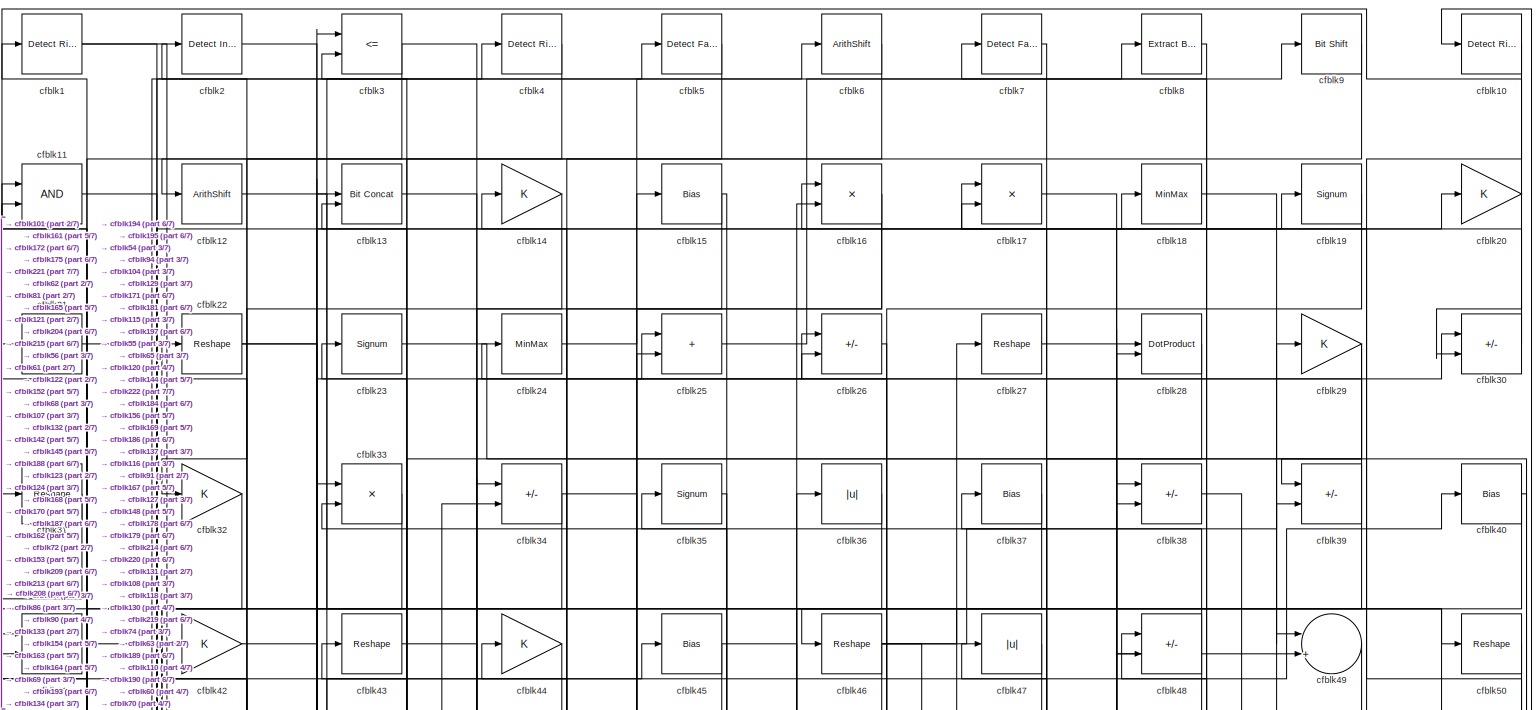
[diagram: root canvas - part 1/7, full width, top band]
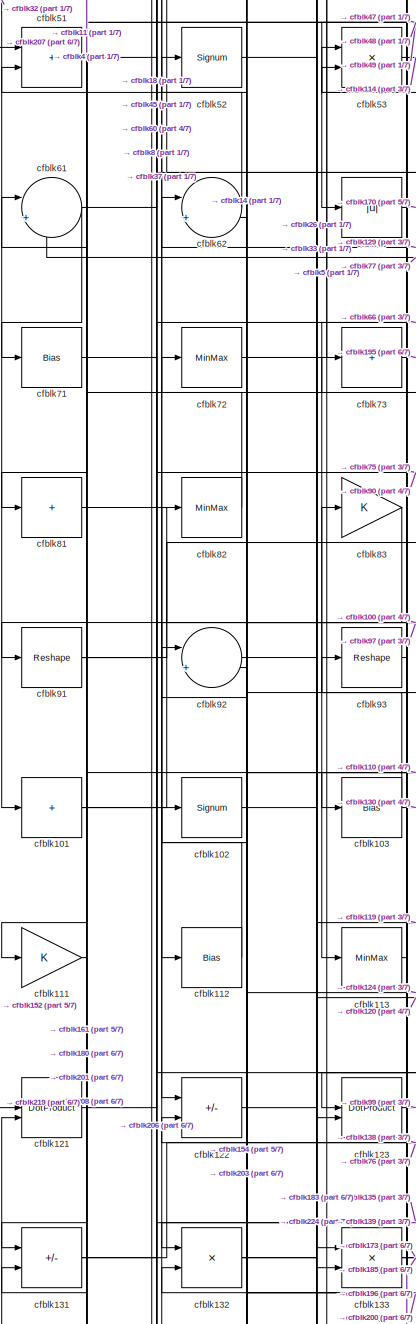
[diagram: root canvas - part 2/7, middle left region]
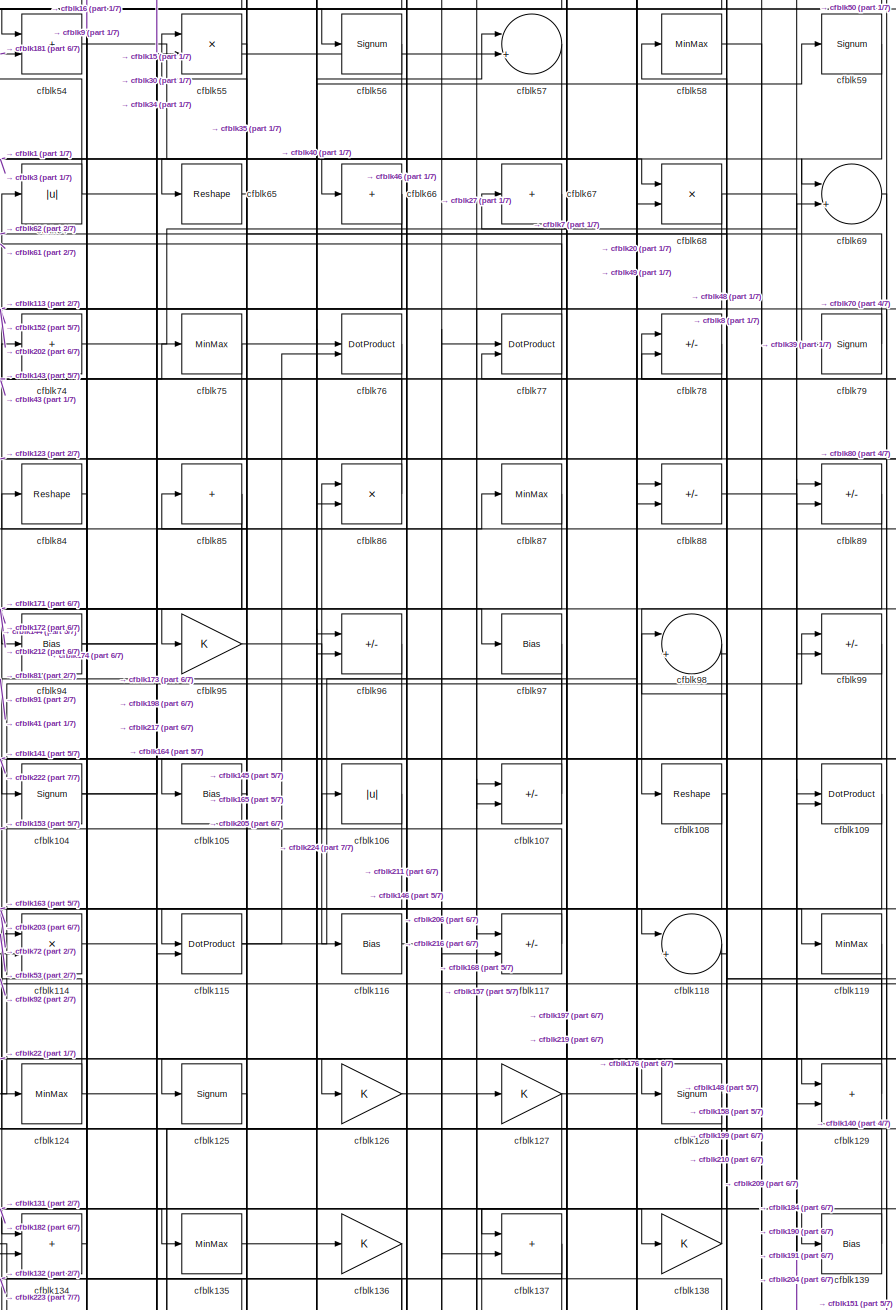
[diagram: root canvas - part 3/7, central region]
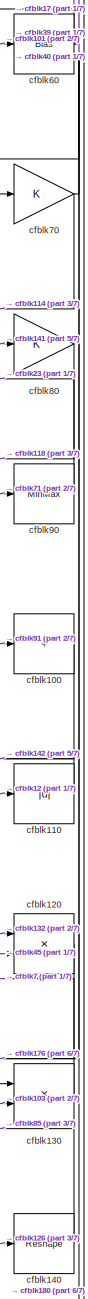
[diagram: root canvas - part 4/7, middle right region]
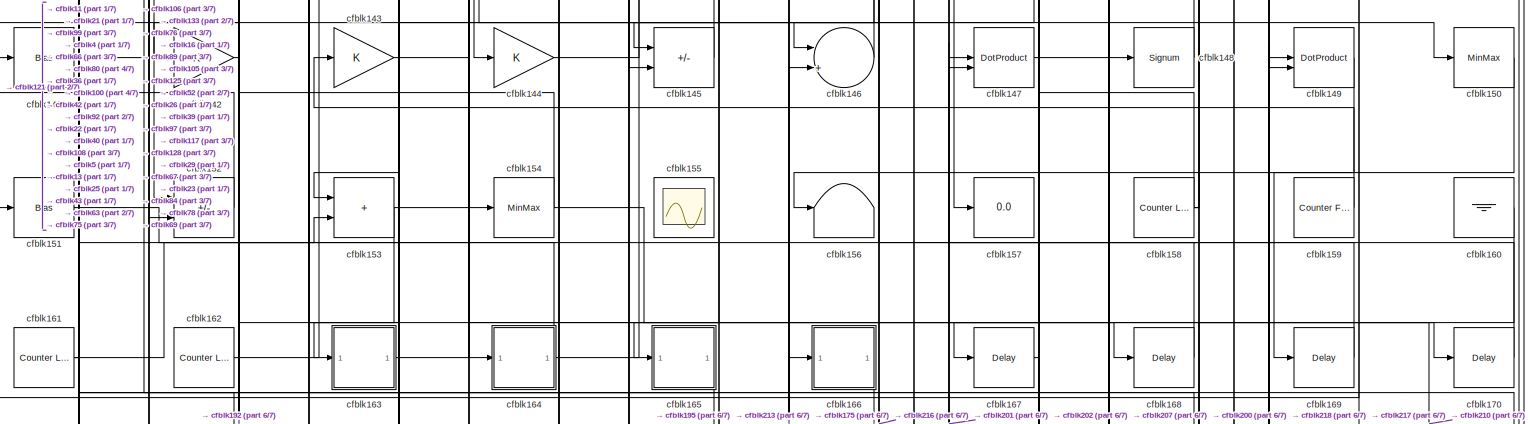
[diagram: root canvas - part 5/7, full width, bottom band]
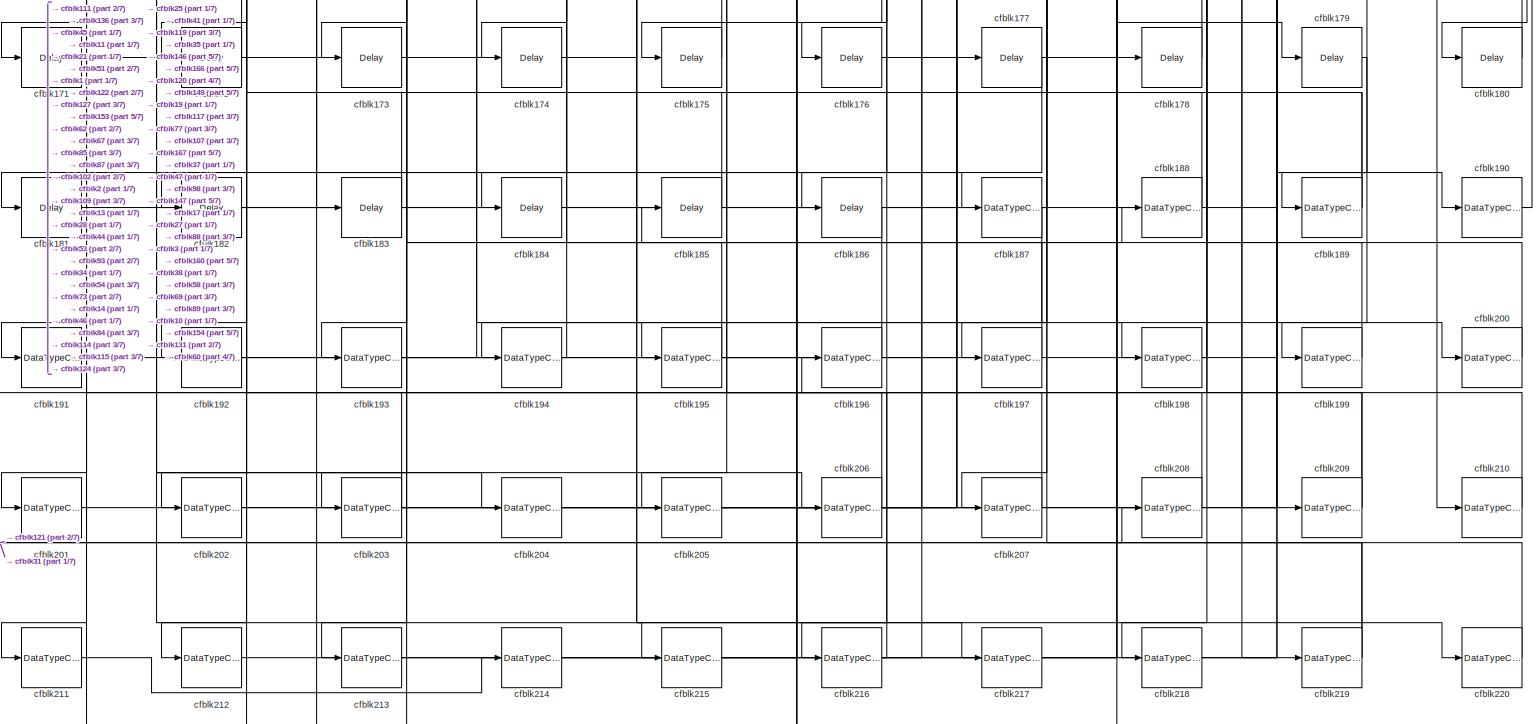
[diagram: root canvas - part 6/7, full width, bottom band]
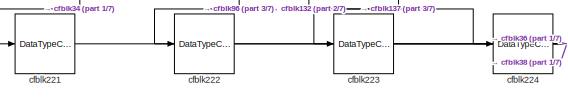
[diagram: root canvas - part 7/7, bottom left region]
MODEL slx_85df7c767185
KIND model
CONFIG AbsTol = auto
CONFIG EnableMultiTasking = off
CONFIG FixedStep = auto
CONFIG MaxStep = auto
CONFIG MinStep = auto
CONFIG RelTol = 1e-3
CONFIG SampleTimeConstraint = Unconstrained
CONFIG SolverName = VariableStepAuto
CONFIG StartTime = 0.0
CONFIG StopTime = 10.0
BLOCK [Reference] cfblk1  REF=hdlsllib/Logic and Bit
Operations/Detect Rise
Positive
  SourceBlock = hdlsllib/Logic and Bit\nOperations/Detect Rise\nPositive
  SourceType = Detect Rise Positive
BLOCK [Reference] cfblk10  REF=hdlsllib/Logic and Bit
Operations/Detect Rise
Positive
  SourceBlock = hdlsllib/Logic and Bit\nOperations/Detect Rise\nPositive
  SourceType = Detect Rise Positive
BLOCK [Sum] cfblk100
  IconShape = rectangular
  Inputs = +
BLOCK [Sum] cfblk101
  IconShape = rectangular
  Inputs = +
BLOCK [Signum] cfblk102
BLOCK [Bias] cfblk103
  Bias = 0.0
  SaturateOnIntegerOverflow = off
BLOCK [Signum] cfblk104
BLOCK [Bias] cfblk105
  Bias = 0.0
  SaturateOnIntegerOverflow = off
BLOCK [Abs] cfblk106
  SaturateOnIntegerOverflow = off
BLOCK [Sum] cfblk107
  IconShape = rectangular
  Inputs = +-
BLOCK [Reshape] cfblk108
BLOCK [DotProduct] cfblk109
  OutDataTypeStr = Inherit: Inherit via internal rule
BLOCK [Logic] cfblk11
  AllPortsSameDT = off
  OutDataTypeStr = boolean
BLOCK [Abs] cfblk110
  SaturateOnIntegerOverflow = off
BLOCK [Gain] cfblk111
BLOCK [Bias] cfblk112
  Bias = 0.0
  SaturateOnIntegerOverflow = off
BLOCK [MinMax] cfblk113
BLOCK [Product] cfblk114
  Inputs = */
  RndMeth = Zero
  SaturateOnIntegerOverflow = on
BLOCK [DotProduct] cfblk115
  OutDataTypeStr = Inherit: Inherit via internal rule
BLOCK [Bias] cfblk116
  Bias = 0.0
  SaturateOnIntegerOverflow = off
BLOCK [Sum] cfblk117
  IconShape = rectangular
  Inputs = +-
BLOCK [Sum] cfblk118
  Inputs = |++
BLOCK [MinMax] cfblk119
BLOCK [ArithShift] cfblk12
  BitShiftNumber = 8
  InputPortMap = u0
BLOCK [Product] cfblk120
  Inputs = */
  RndMeth = Zero
  SaturateOnIntegerOverflow = on
BLOCK [DotProduct] cfblk121
  OutDataTypeStr = Inherit: Inherit via internal rule
BLOCK [Sum] cfblk122
  IconShape = rectangular
  Inputs = +-
BLOCK [DotProduct] cfblk123
  OutDataTypeStr = Inherit: Inherit via internal rule
BLOCK [MinMax] cfblk124
BLOCK [Signum] cfblk125
BLOCK [Gain] cfblk126
BLOCK [Gain] cfblk127
BLOCK [Signum] cfblk128
BLOCK [Sum] cfblk129
  IconShape = rectangular
BLOCK [Reference] cfblk13  REF=hdlsllib/Logic and Bit
Operations/Bit Concat
  SourceBlock = hdlsllib/Logic and Bit\nOperations/Bit Concat
  SourceType = Bit Concat
BLOCK [Product] cfblk130
  Inputs = */
  RndMeth = Zero
  SaturateOnIntegerOverflow = on
BLOCK [Sum] cfblk131
  IconShape = rectangular
  Inputs = +-
BLOCK [Product] cfblk132
  Inputs = */
  RndMeth = Zero
  SaturateOnIntegerOverflow = on
BLOCK [Product] cfblk133
  Inputs = */
  RndMeth = Zero
  SaturateOnIntegerOverflow = on
BLOCK [Sum] cfblk134
  IconShape = rectangular
BLOCK [MinMax] cfblk135
BLOCK [Gain] cfblk136
BLOCK [Sum] cfblk137
  IconShape = rectangular
BLOCK [Gain] cfblk138
BLOCK [Bias] cfblk139
  Bias = 0.0
  SaturateOnIntegerOverflow = off
BLOCK [Gain] cfblk14
BLOCK [Reshape] cfblk140
BLOCK [Bias] cfblk141
  Bias = 0.0
  SaturateOnIntegerOverflow = off
BLOCK [Gain] cfblk142
BLOCK [Gain] cfblk143
BLOCK [Gain] cfblk144
BLOCK [Sum] cfblk145
  IconShape = rectangular
  Inputs = +-
BLOCK [Sum] cfblk146
  Inputs = |++
BLOCK [DotProduct] cfblk147
  OutDataTypeStr = Inherit: Inherit via internal rule
BLOCK [Signum] cfblk148
BLOCK [DotProduct] cfblk149
  OutDataTypeStr = Inherit: Inherit via internal rule
BLOCK [Bias] cfblk15
  Bias = 0.0
  SaturateOnIntegerOverflow = off
BLOCK [MinMax] cfblk150
BLOCK [Bias] cfblk151
  Bias = 0.0
  SaturateOnIntegerOverflow = off
BLOCK [Sum] cfblk152
  IconShape = rectangular
  Inputs = +-
BLOCK [Sum] cfblk153
  IconShape = rectangular
BLOCK [MinMax] cfblk154
BLOCK [Scope] cfblk155
  Floating = on
  NumInputPorts = 1
  ScopeSpecificationString = Simulink.scopes.TimeScopeBlockCfg('CurrentConfiguration', extmgr.ConfigurationSet(extmgr.Configuration('Core','General UI',true,'FigureColor',[0.156862745098039 0.156862745098039 0.156862745098039]),extmgr.Configuration('Core','Source UI',true),extmgr.Configuration('Sources','WiredSimulink',true,'DataLoggingVariableName','ScopeData1','DataLoggingSaveFormat','StructureWithTime','DataLoggingLimitDat...<+2713ch>
BLOCK [Terminator] cfblk156
BLOCK [Display] cfblk157
  Decimation = 1
BLOCK [Reference] cfblk158  REF=hdlsllib/Sources/Counter
Limited
  SourceBlock = hdlsllib/Sources/Counter\nLimited
  SourceType = Counter Limited
BLOCK [Reference] cfblk159  REF=hdlsllib/Sources/Counter
Free-Running
  SourceBlock = hdlsllib/Sources/Counter\nFree-Running
  SourceType = Counter Free-Running
BLOCK [Product] cfblk16
  Inputs = */
  RndMeth = Zero
  SaturateOnIntegerOverflow = on
BLOCK [Ground] cfblk160
BLOCK [Reference] cfblk161  REF=hdlsllib/Sources/Counter
Limited
  SourceBlock = hdlsllib/Sources/Counter\nLimited
  SourceType = Counter Limited
BLOCK [Reference] cfblk162  REF=hdlsllib/Sources/Counter
Limited
  SourceBlock = hdlsllib/Sources/Counter\nLimited
  SourceType = Counter Limited
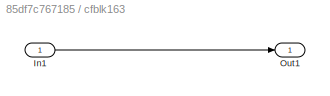
BLOCK [SubSystem] cfblk163
  LibrarySourceBlock = hdlsllib/Ports &\nSubsystems/Subsystem
BLOCK [Inport] cfblk163/In1
BLOCK [Outport] cfblk163/Out1
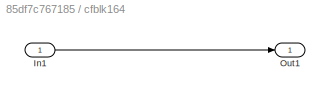
BLOCK [SubSystem] cfblk164
  LibrarySourceBlock = hdlsllib/Ports &\nSubsystems/Subsystem
BLOCK [Inport] cfblk164/In1
BLOCK [Outport] cfblk164/Out1
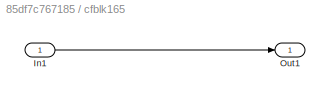
BLOCK [SubSystem] cfblk165
  LibrarySourceBlock = hdlsllib/Ports &\nSubsystems/Subsystem
BLOCK [Inport] cfblk165/In1
BLOCK [Outport] cfblk165/Out1
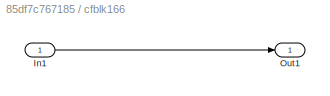
BLOCK [SubSystem] cfblk166
  LibrarySourceBlock = hdlsllib/Ports &\nSubsystems/Subsystem
BLOCK [Inport] cfblk166/In1
BLOCK [Outport] cfblk166/Out1
BLOCK [Delay] cfblk167
  InputPortMap = u0
  SampleTime = 1
BLOCK [Delay] cfblk168
  InputPortMap = u0
  SampleTime = 1
BLOCK [Delay] cfblk169
  InputPortMap = u0
  SampleTime = 1
BLOCK [Product] cfblk17
  Inputs = */
  RndMeth = Zero
  SaturateOnIntegerOverflow = on
BLOCK [Delay] cfblk170
  InputPortMap = u0
  SampleTime = 1
BLOCK [Delay] cfblk171
  InputPortMap = u0
  SampleTime = 1
BLOCK [Delay] cfblk172
  InputPortMap = u0
  SampleTime = 1
BLOCK [Delay] cfblk173
  InputPortMap = u0
  SampleTime = 1
BLOCK [Delay] cfblk174
  InputPortMap = u0
  SampleTime = 1
BLOCK [Delay] cfblk175
  InputPortMap = u0
  SampleTime = 1
BLOCK [Delay] cfblk176
  InputPortMap = u0
  SampleTime = 1
BLOCK [Delay] cfblk177
  InputPortMap = u0
  SampleTime = 1
BLOCK [Delay] cfblk178
  InputPortMap = u0
  SampleTime = 1
BLOCK [Delay] cfblk179
  InputPortMap = u0
  SampleTime = 1
BLOCK [MinMax] cfblk18
BLOCK [Delay] cfblk180
  InputPortMap = u0
  SampleTime = 1
BLOCK [Delay] cfblk181
  InputPortMap = u0
  SampleTime = 1
BLOCK [Delay] cfblk182
  InputPortMap = u0
  SampleTime = 1
BLOCK [Delay] cfblk183
  InputPortMap = u0
  SampleTime = 1
BLOCK [Delay] cfblk184
  InputPortMap = u0
  SampleTime = 1
BLOCK [Delay] cfblk185
  InputPortMap = u0
  SampleTime = 1
BLOCK [Delay] cfblk186
  InputPortMap = u0
  SampleTime = 1
BLOCK [DataTypeConversion] cfblk187
  RndMeth = Floor
  SaturateOnIntegerOverflow = off
BLOCK [DataTypeConversion] cfblk188
  OutDataTypeStr = uint8
  RndMeth = Floor
  SaturateOnIntegerOverflow = off
BLOCK [DataTypeConversion] cfblk189
  RndMeth = Floor
  SaturateOnIntegerOverflow = off
BLOCK [Signum] cfblk19
BLOCK [DataTypeConversion] cfblk190
  OutDataTypeStr = uint8
  RndMeth = Floor
  SaturateOnIntegerOverflow = off
BLOCK [DataTypeConversion] cfblk191
  OutDataTypeStr = uint8
  RndMeth = Floor
  SaturateOnIntegerOverflow = off
BLOCK [DataTypeConversion] cfblk192
  OutDataTypeStr = uint8
  RndMeth = Floor
  SaturateOnIntegerOverflow = off
BLOCK [DataTypeConversion] cfblk193
  OutDataTypeStr = uint8
  RndMeth = Floor
  SaturateOnIntegerOverflow = off
BLOCK [DataTypeConversion] cfblk194
  OutDataTypeStr = uint8
  RndMeth = Floor
  SaturateOnIntegerOverflow = off
BLOCK [DataTypeConversion] cfblk195
  RndMeth = Floor
  SaturateOnIntegerOverflow = off
BLOCK [DataTypeConversion] cfblk196
  OutDataTypeStr = uint8
  RndMeth = Floor
  SaturateOnIntegerOverflow = off
BLOCK [DataTypeConversion] cfblk197
  OutDataTypeStr = uint8
  RndMeth = Floor
  SaturateOnIntegerOverflow = off
BLOCK [DataTypeConversion] cfblk198
  OutDataTypeStr = uint8
  RndMeth = Floor
  SaturateOnIntegerOverflow = off
BLOCK [DataTypeConversion] cfblk199
  OutDataTypeStr = uint8
  RndMeth = Floor
  SaturateOnIntegerOverflow = off
BLOCK [Reference] cfblk2  REF=simulink/Logic and Bit
Operations/Detect
Increase
  LibrarySourceBlock = hdlsllib/Logic and Bit\nOperations/Detect\nIncrease
  SourceBlock = simulink/Logic and Bit\nOperations/Detect\nIncrease
  SourceType = Detect Increase
BLOCK [Gain] cfblk20
BLOCK [DataTypeConversion] cfblk200
  OutDataTypeStr = uint8
  RndMeth = Floor
  SaturateOnIntegerOverflow = off
BLOCK [DataTypeConversion] cfblk201
  OutDataTypeStr = uint8
  RndMeth = Floor
  SaturateOnIntegerOverflow = off
BLOCK [DataTypeConversion] cfblk202
  OutDataTypeStr = uint8
  RndMeth = Floor
  SaturateOnIntegerOverflow = off
BLOCK [DataTypeConversion] cfblk203
  RndMeth = Floor
  SaturateOnIntegerOverflow = off
BLOCK [DataTypeConversion] cfblk204
  OutDataTypeStr = uint8
  RndMeth = Floor
  SaturateOnIntegerOverflow = off
BLOCK [DataTypeConversion] cfblk205
  OutDataTypeStr = uint8
  RndMeth = Floor
  SaturateOnIntegerOverflow = off
BLOCK [DataTypeConversion] cfblk206
  RndMeth = Floor
  SaturateOnIntegerOverflow = off
BLOCK [DataTypeConversion] cfblk207
  OutDataTypeStr = uint8
  RndMeth = Floor
  SaturateOnIntegerOverflow = off
BLOCK [DataTypeConversion] cfblk208
  OutDataTypeStr = uint8
  RndMeth = Floor
  SaturateOnIntegerOverflow = off
BLOCK [DataTypeConversion] cfblk209
  RndMeth = Floor
  SaturateOnIntegerOverflow = off
BLOCK [Sum] cfblk21
  IconShape = rectangular
  Inputs = +
BLOCK [DataTypeConversion] cfblk210
  OutDataTypeStr = uint8
  RndMeth = Floor
  SaturateOnIntegerOverflow = off
BLOCK [DataTypeConversion] cfblk211
  OutDataTypeStr = uint8
  RndMeth = Floor
  SaturateOnIntegerOverflow = off
BLOCK [DataTypeConversion] cfblk212
  OutDataTypeStr = uint8
  RndMeth = Floor
  SaturateOnIntegerOverflow = off
BLOCK [DataTypeConversion] cfblk213
  OutDataTypeStr = uint8
  RndMeth = Floor
  SaturateOnIntegerOverflow = off
BLOCK [DataTypeConversion] cfblk214
  OutDataTypeStr = uint8
  RndMeth = Floor
  SaturateOnIntegerOverflow = off
BLOCK [DataTypeConversion] cfblk215
  OutDataTypeStr = uint8
  RndMeth = Floor
  SaturateOnIntegerOverflow = off
BLOCK [DataTypeConversion] cfblk216
  RndMeth = Floor
  SaturateOnIntegerOverflow = off
BLOCK [DataTypeConversion] cfblk217
  OutDataTypeStr = uint8
  RndMeth = Floor
  SaturateOnIntegerOverflow = off
BLOCK [DataTypeConversion] cfblk218
  OutDataTypeStr = uint8
  RndMeth = Floor
  SaturateOnIntegerOverflow = off
BLOCK [DataTypeConversion] cfblk219
  RndMeth = Floor
  SaturateOnIntegerOverflow = off
BLOCK [Reshape] cfblk22
BLOCK [DataTypeConversion] cfblk220
  OutDataTypeStr = uint8
  RndMeth = Floor
  SaturateOnIntegerOverflow = off
BLOCK [DataTypeConversion] cfblk221
  OutDataTypeStr = uint8
  RndMeth = Floor
  SaturateOnIntegerOverflow = off
BLOCK [DataTypeConversion] cfblk222
  OutDataTypeStr = uint8
  RndMeth = Floor
  SaturateOnIntegerOverflow = off
BLOCK [DataTypeConversion] cfblk223
  OutDataTypeStr = uint8
  RndMeth = Floor
  SaturateOnIntegerOverflow = off
BLOCK [DataTypeConversion] cfblk224
  OutDataTypeStr = uint8
  RndMeth = Floor
  SaturateOnIntegerOverflow = off
BLOCK [Signum] cfblk23
BLOCK [MinMax] cfblk24
BLOCK [Sum] cfblk25
  IconShape = rectangular
BLOCK [Sum] cfblk26
  IconShape = rectangular
  Inputs = +-
BLOCK [Reshape] cfblk27
BLOCK [DotProduct] cfblk28
  OutDataTypeStr = Inherit: Inherit via internal rule
BLOCK [Gain] cfblk29
BLOCK [RelationalOperator] cfblk3
  InputSameDT = off
  Operator = <=
  OutDataTypeStr = boolean
BLOCK [Sum] cfblk30
  IconShape = rectangular
  Inputs = +-
BLOCK [Reshape] cfblk31
BLOCK [Gain] cfblk32
BLOCK [Product] cfblk33
  Inputs = */
  RndMeth = Zero
  SaturateOnIntegerOverflow = on
BLOCK [Sum] cfblk34
  IconShape = rectangular
  Inputs = +-
BLOCK [Signum] cfblk35
BLOCK [Abs] cfblk36
  SaturateOnIntegerOverflow = off
BLOCK [Bias] cfblk37
  Bias = 0.0
  SaturateOnIntegerOverflow = off
BLOCK [Sum] cfblk38
  IconShape = rectangular
  Inputs = +-
BLOCK [Sum] cfblk39
  IconShape = rectangular
  Inputs = +-
BLOCK [Reference] cfblk4  REF=hdlsllib/Logic and Bit
Operations/Detect Rise
Nonnegative
  SourceBlock = hdlsllib/Logic and Bit\nOperations/Detect Rise\nNonnegative
  SourceType = Detect Rise Nonnegative
BLOCK [Bias] cfblk40
  Bias = 0.0
  SaturateOnIntegerOverflow = off
BLOCK [Sum] cfblk41
  IconShape = rectangular
BLOCK [Gain] cfblk42
BLOCK [Reshape] cfblk43
BLOCK [Gain] cfblk44
BLOCK [Bias] cfblk45
  Bias = 0.0
  SaturateOnIntegerOverflow = off
BLOCK [Reshape] cfblk46
BLOCK [Abs] cfblk47
  SaturateOnIntegerOverflow = off
BLOCK [Sum] cfblk48
  IconShape = rectangular
  Inputs = +-
BLOCK [Sum] cfblk49
  Inputs = |++
BLOCK [Reference] cfblk5  REF=hdlsllib/Logic and Bit
Operations/Detect Fall
Negative
  SourceBlock = hdlsllib/Logic and Bit\nOperations/Detect Fall\nNegative
  SourceType = Detect Fall Negative
BLOCK [Reshape] cfblk50
BLOCK [Sum] cfblk51
  IconShape = rectangular
BLOCK [Signum] cfblk52
BLOCK [Product] cfblk53
  Inputs = */
  RndMeth = Zero
  SaturateOnIntegerOverflow = on
BLOCK [Sum] cfblk54
  IconShape = rectangular
BLOCK [Product] cfblk55
  Inputs = */
  RndMeth = Zero
  SaturateOnIntegerOverflow = on
BLOCK [Signum] cfblk56
BLOCK [Sum] cfblk57
  Inputs = |++
BLOCK [MinMax] cfblk58
BLOCK [Signum] cfblk59
BLOCK [ArithShift] cfblk6
  BitShiftNumber = 8
  InputPortMap = u0
BLOCK [Bias] cfblk60
  Bias = 0.0
  SaturateOnIntegerOverflow = off
BLOCK [Sum] cfblk61
  Inputs = |++
BLOCK [Sum] cfblk62
  Inputs = |++
BLOCK [Abs] cfblk63
  SaturateOnIntegerOverflow = off
BLOCK [Abs] cfblk64
  SaturateOnIntegerOverflow = off
BLOCK [Reshape] cfblk65
BLOCK [Sum] cfblk66
  IconShape = rectangular
  Inputs = +
BLOCK [Sum] cfblk67
  IconShape = rectangular
  Inputs = +
BLOCK [Product] cfblk68
  Inputs = */
  RndMeth = Zero
  SaturateOnIntegerOverflow = on
BLOCK [Sum] cfblk69
  Inputs = |++
BLOCK [Reference] cfblk7  REF=hdlsllib/Logic and Bit
Operations/Detect Fall
Negative
  SourceBlock = hdlsllib/Logic and Bit\nOperations/Detect Fall\nNegative
  SourceType = Detect Fall Negative
BLOCK [Gain] cfblk70
BLOCK [Bias] cfblk71
  Bias = 0.0
  SaturateOnIntegerOverflow = off
BLOCK [MinMax] cfblk72
BLOCK [Sum] cfblk73
  IconShape = rectangular
  Inputs = +
BLOCK [Sum] cfblk74
  IconShape = rectangular
  Inputs = +
BLOCK [MinMax] cfblk75
BLOCK [DotProduct] cfblk76
  OutDataTypeStr = Inherit: Inherit via internal rule
BLOCK [DotProduct] cfblk77
  OutDataTypeStr = Inherit: Inherit via internal rule
BLOCK [Sum] cfblk78
  IconShape = rectangular
  Inputs = +-
BLOCK [Signum] cfblk79
BLOCK [Reference] cfblk8  REF=simulink/Logic and Bit
Operations/Extract Bits
  LibrarySourceBlock = hdlsllib/Logic and Bit\nOperations/Extract Bits
  SourceBlock = simulink/Logic and Bit\nOperations/Extract Bits
  SourceType = Extract Bits
BLOCK [Gain] cfblk80
BLOCK [Sum] cfblk81
  IconShape = rectangular
  Inputs = +
BLOCK [MinMax] cfblk82
BLOCK [Gain] cfblk83
BLOCK [Reshape] cfblk84
BLOCK [Sum] cfblk85
  IconShape = rectangular
  Inputs = +
BLOCK [Product] cfblk86
  Inputs = */
  RndMeth = Zero
  SaturateOnIntegerOverflow = on
BLOCK [MinMax] cfblk87
BLOCK [Sum] cfblk88
  IconShape = rectangular
  Inputs = +-
BLOCK [Sum] cfblk89
  IconShape = rectangular
  Inputs = +-
BLOCK [Reference] cfblk9  REF=hdlsllib/Logic and Bit
Operations/Bit Shift
  SourceBlock = hdlsllib/Logic and Bit\nOperations/Bit Shift
  SourceType = Bit Shift
BLOCK [MinMax] cfblk90
BLOCK [Reshape] cfblk91
BLOCK [Sum] cfblk92
  Inputs = |++
BLOCK [Reshape] cfblk93
BLOCK [Bias] cfblk94
  Bias = 0.0
  SaturateOnIntegerOverflow = off
BLOCK [Gain] cfblk95
BLOCK [Sum] cfblk96
  IconShape = rectangular
  Inputs = +-
BLOCK [Bias] cfblk97
  Bias = 0.0
  SaturateOnIntegerOverflow = off
BLOCK [Sum] cfblk98
  Inputs = |++
BLOCK [Sum] cfblk99
  IconShape = rectangular
  Inputs = +-
LINE cfblk100:1 -> cfblk142:1
NET cfblk101:1 -> cfblk45:1, cfblk60:1
LINE cfblk102:1 -> cfblk183:1
NET cfblk103:1 -> cfblk130:2, cfblk83:1
NET cfblk104:1 -> cfblk15:1, cfblk30:1
LINE cfblk105:1 -> cfblk145:1
LINE cfblk106:1 -> cfblk144:1
LINE cfblk107:1 -> cfblk41:1
NET cfblk108:1 -> cfblk163:1, cfblk48:1
LINE cfblk109:1 -> cfblk203:1
LINE cfblk10:1 -> cfblk189:1
LINE cfblk110:1 -> cfblk103:1
LINE cfblk111:1 -> cfblk201:1
LINE cfblk112:1 -> cfblk82:1
LINE cfblk113:1 -> cfblk53:1
LINE cfblk114:1 -> cfblk198:1
NET cfblk115:1 -> cfblk20:1, cfblk76:2
LINE cfblk116:1 -> cfblk27:1
LINE cfblk117:1 -> cfblk86:1
LINE cfblk118:1 -> cfblk128:1
LINE cfblk119:1 -> cfblk205:1
LINE cfblk11:1 -> cfblk215:1
LINE cfblk120:1 -> cfblk176:1
LINE cfblk121:1 -> cfblk18:1
LINE cfblk122:1 -> cfblk26:1
LINE cfblk123:1 -> cfblk99:1
NET cfblk124:1 -> cfblk217:1, cfblk92:2
LINE cfblk125:1 -> cfblk165:1
LINE cfblk126:1 -> cfblk140:1
NET cfblk127:1 -> cfblk182:1, cfblk49:2
LINE cfblk128:1 -> cfblk157:1
LINE cfblk129:1 -> cfblk62:1
LINE cfblk12:1 -> cfblk110:1
LINE cfblk130:1 -> cfblk7:1
NET cfblk131:1 -> cfblk135:1, cfblk76:1
NET cfblk132:1 -> cfblk120:1, cfblk224:1
NET cfblk133:1 -> cfblk150:1, cfblk34:2
LINE cfblk134:1 -> cfblk74:1
LINE cfblk135:1 -> cfblk59:1
LINE cfblk136:1 -> cfblk211:1
NET cfblk137:1 -> cfblk132:2, cfblk223:1
LINE cfblk138:1 -> cfblk72:1
LINE cfblk139:1 -> cfblk64:1
LINE cfblk13:1 -> cfblk164:1
LINE cfblk140:1 -> cfblk85:1
LINE cfblk141:1 -> cfblk80:1
LINE cfblk142:1 -> cfblk42:1
LINE cfblk143:1 -> cfblk75:1
LINE cfblk144:1 -> cfblk16:2
LINE cfblk145:1 -> cfblk22:1
LINE cfblk146:1 -> cfblk52:1
LINE cfblk147:1 -> cfblk200:1
LINE cfblk148:1 -> cfblk84:1
LINE cfblk149:1 -> cfblk216:1
LINE cfblk14:1 -> cfblk132:1
LINE cfblk150:1 -> cfblk169:1
LINE cfblk151:1 -> cfblk153:2
LINE cfblk152:1 -> cfblk121:2
NET cfblk153:1 -> cfblk106:1, cfblk192:1
NET cfblk154:1 -> cfblk210:1, cfblk92:1
NET cfblk158:1 -> cfblk67:1, cfblk78:1, cfblk78:2
LINE cfblk159:1 -> cfblk143:1
NET cfblk15:1 -> cfblk55:2, cfblk65:1
LINE cfblk160:1 -> cfblk218:1
NET cfblk161:1 -> cfblk11:2, cfblk133:2
LINE cfblk162:1 -> cfblk40:1
LINE cfblk163/In1:1 -> cfblk163/Out1:1
LINE cfblk163:1 -> cfblk25:1
LINE cfblk164/In1:1 -> cfblk164/Out1:1
NET cfblk164:1 -> cfblk21:1, cfblk89:1
LINE cfblk165/In1:1 -> cfblk165/Out1:1
LINE cfblk165:1 -> cfblk4:1
LINE cfblk166/In1:1 -> cfblk166/Out1:1
LINE cfblk166:1 -> cfblk175:1
LINE cfblk167:1 -> cfblk207:1
LINE cfblk168:1 -> cfblk117:1
LINE cfblk169:1 -> cfblk26:2
NET cfblk16:1 -> cfblk134:2, cfblk94:1
LINE cfblk170:1 -> cfblk13:1
LINE cfblk171:1 -> cfblk25:2
LINE cfblk172:1 -> cfblk1:1
LINE cfblk173:1 -> cfblk115:2
LINE cfblk174:1 -> cfblk220:1
LINE cfblk175:1 -> cfblk41:2
LINE cfblk176:1 -> cfblk88:1
LINE cfblk177:1 -> cfblk191:1
LINE cfblk178:1 -> cfblk3:1
LINE cfblk179:1 -> cfblk199:1
LINE cfblk17:1 -> cfblk179:1
LINE cfblk180:1 -> cfblk131:2
LINE cfblk181:1 -> cfblk54:2
LINE cfblk182:1 -> cfblk107:1
LINE cfblk183:1 -> cfblk122:2
LINE cfblk184:1 -> cfblk89:2
LINE cfblk185:1 -> cfblk53:2
LINE cfblk186:1 -> cfblk188:1
NET cfblk187:1 -> cfblk194:1, cfblk47:1
LINE cfblk188:1 -> cfblk2:1
NET cfblk189:1 -> cfblk17:2, cfblk37:1
LINE cfblk18:1 -> cfblk49:1
LINE cfblk190:1 -> cfblk10:1
LINE cfblk191:1 -> cfblk69:2
LINE cfblk192:1 -> cfblk177:1
LINE cfblk193:1 -> cfblk34:1
LINE cfblk194:1 -> cfblk44:1
NET cfblk195:1 -> cfblk146:2, cfblk14:1
LINE cfblk196:1 -> cfblk73:1
LINE cfblk197:1 -> cfblk35:1
LINE cfblk198:1 -> cfblk98:1
LINE cfblk199:1 -> cfblk98:2
LINE cfblk19:1 -> cfblk186:1
NET cfblk1:1 -> cfblk68:1, cfblk68:2
LINE cfblk200:1 -> cfblk93:1
LINE cfblk201:1 -> cfblk147:1
LINE cfblk202:1 -> cfblk147:2
NET cfblk203:1 -> cfblk102:1, cfblk127:1
LINE cfblk204:1 -> cfblk109:1
LINE cfblk205:1 -> cfblk109:2
NET cfblk206:1 -> cfblk117:2, cfblk62:2
LINE cfblk207:1 -> cfblk51:1
LINE cfblk208:1 -> cfblk51:2
NET cfblk209:1 -> cfblk13:2, cfblk185:1
NET cfblk20:1 -> cfblk30:2, cfblk31:1
LINE cfblk210:1 -> cfblk58:1
LINE cfblk211:1 -> cfblk214:1
LINE cfblk212:1 -> cfblk136:1
LINE cfblk213:1 -> cfblk166:1
LINE cfblk214:1 -> cfblk28:1
LINE cfblk215:1 -> cfblk28:2
NET cfblk216:1 -> cfblk196:1, cfblk77:1
LINE cfblk217:1 -> cfblk149:1
LINE cfblk218:1 -> cfblk149:2
NET cfblk219:1 -> cfblk121:1, cfblk77:2
LINE cfblk21:1 -> cfblk204:1
LINE cfblk220:1 -> cfblk38:1
LINE cfblk221:1 -> cfblk38:2
LINE cfblk222:1 -> cfblk36:1
LINE cfblk223:1 -> cfblk96:1
LINE cfblk224:1 -> cfblk96:2
NET cfblk22:1 -> cfblk124:1, cfblk168:1
LINE cfblk23:1 -> cfblk148:1
LINE cfblk24:1 -> cfblk6:1
LINE cfblk25:1 -> cfblk9:1
LINE cfblk26:1 -> cfblk46:1
LINE cfblk27:1 -> cfblk178:1
LINE cfblk28:1 -> cfblk213:1
NET cfblk29:1 -> cfblk167:1, cfblk48:2
LINE cfblk2:1 -> cfblk187:1
LINE cfblk30:1 -> cfblk16:1
LINE cfblk31:1 -> cfblk208:1
LINE cfblk32:1 -> cfblk101:1
LINE cfblk33:1 -> cfblk123:2
NET cfblk34:1 -> cfblk129:1, cfblk221:1
LINE cfblk35:1 -> cfblk115:1
LINE cfblk36:1 -> cfblk152:1
LINE cfblk37:1 -> cfblk122:1
LINE cfblk38:1 -> cfblk219:1
NET cfblk39:1 -> cfblk156:1, cfblk24:1
NET cfblk3:1 -> cfblk32:1, cfblk69:1
NET cfblk40:1 -> cfblk70:1, cfblk86:2
LINE cfblk41:1 -> cfblk56:1
LINE cfblk42:1 -> cfblk19:1
LINE cfblk43:1 -> cfblk154:1
LINE cfblk44:1 -> cfblk193:1
NET cfblk45:1 -> cfblk120:2, cfblk181:1
NET cfblk46:1 -> cfblk137:2, cfblk184:1, cfblk29:1, cfblk50:1
LINE cfblk47:1 -> cfblk91:1
NET cfblk48:1 -> cfblk131:1, cfblk33:2
LINE cfblk49:1 -> cfblk63:1
LINE cfblk4:1 -> cfblk81:1
LINE cfblk50:1 -> cfblk104:1
LINE cfblk51:1 -> cfblk206:1
LINE cfblk52:1 -> cfblk133:1
LINE cfblk53:1 -> cfblk114:1
LINE cfblk54:1 -> cfblk88:2
LINE cfblk55:1 -> cfblk105:1
LINE cfblk56:1 -> cfblk66:1
LINE cfblk57:1 -> cfblk95:1
LINE cfblk58:1 -> cfblk209:1
LINE cfblk59:1 -> cfblk79:1
LINE cfblk5:1 -> cfblk153:1
NET cfblk60:1 -> cfblk130:1, cfblk17:1, cfblk180:1
NET cfblk61:1 -> cfblk71:1, cfblk8:1
LINE cfblk62:1 -> cfblk11:1
LINE cfblk63:1 -> cfblk170:1
NET cfblk64:1 -> cfblk138:1, cfblk3:2
LINE cfblk65:1 -> cfblk125:1
NET cfblk66:1 -> cfblk113:1, cfblk152:2
LINE cfblk67:1 -> cfblk202:1
NET cfblk68:1 -> cfblk107:2, cfblk99:2
LINE cfblk69:1 -> cfblk151:1
LINE cfblk6:1 -> cfblk12:1
NET cfblk70:1 -> cfblk114:2, cfblk39:1
NET cfblk71:1 -> cfblk111:1, cfblk90:1
NET cfblk72:1 -> cfblk119:1, cfblk5:1
LINE cfblk73:1 -> cfblk195:1
LINE cfblk74:1 -> cfblk39:2
NET cfblk75:1 -> cfblk123:1, cfblk57:1
LINE cfblk76:1 -> cfblk145:2
NET cfblk77:1 -> cfblk126:1, cfblk61:2
LINE cfblk78:1 -> cfblk134:1
LINE cfblk79:1 -> cfblk55:1
LINE cfblk7:1 -> cfblk137:1
LINE cfblk80:1 -> cfblk118:1
LINE cfblk81:1 -> cfblk97:1
LINE cfblk82:1 -> cfblk61:1
LINE cfblk83:1 -> cfblk112:1
LINE cfblk84:1 -> cfblk174:1
NET cfblk85:1 -> cfblk171:1, cfblk172:1
LINE cfblk86:1 -> cfblk43:1
LINE cfblk87:1 -> cfblk212:1
LINE cfblk88:1 -> cfblk190:1
LINE cfblk89:1 -> cfblk108:1
LINE cfblk8:1 -> cfblk118:2
LINE cfblk90:1 -> cfblk23:1
NET cfblk91:1 -> cfblk100:1, cfblk129:2, cfblk33:1
LINE cfblk92:1 -> cfblk139:1
LINE cfblk93:1 -> cfblk173:1
NET cfblk94:1 -> cfblk57:2, cfblk87:1
LINE cfblk95:1 -> cfblk116:1
LINE cfblk96:1 -> cfblk222:1
LINE cfblk97:1 -> cfblk146:1
LINE cfblk98:1 -> cfblk197:1
LINE cfblk99:1 -> cfblk141:1
LINE cfblk9:1 -> cfblk54:1
note: NET lines group one-source signal fan-out (src -> all destinations, sorted); 1:1 wires keep LINE
